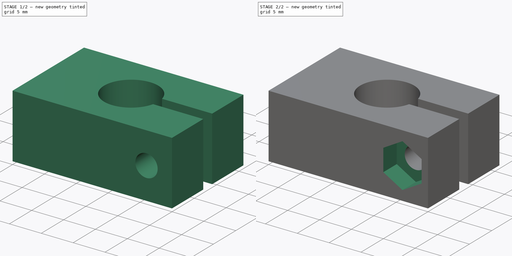
[diagram: build sequence overview — one tinted view per stage of 2, left to right]
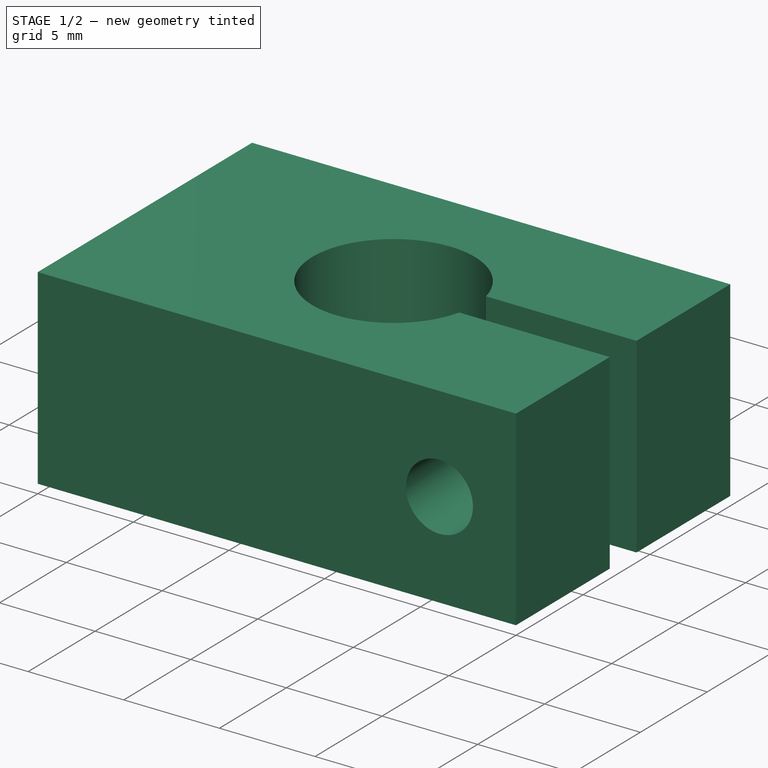
[diagram: stage 1 of 2 — iso view after this stage's code; geometry added in this stage tinted green]
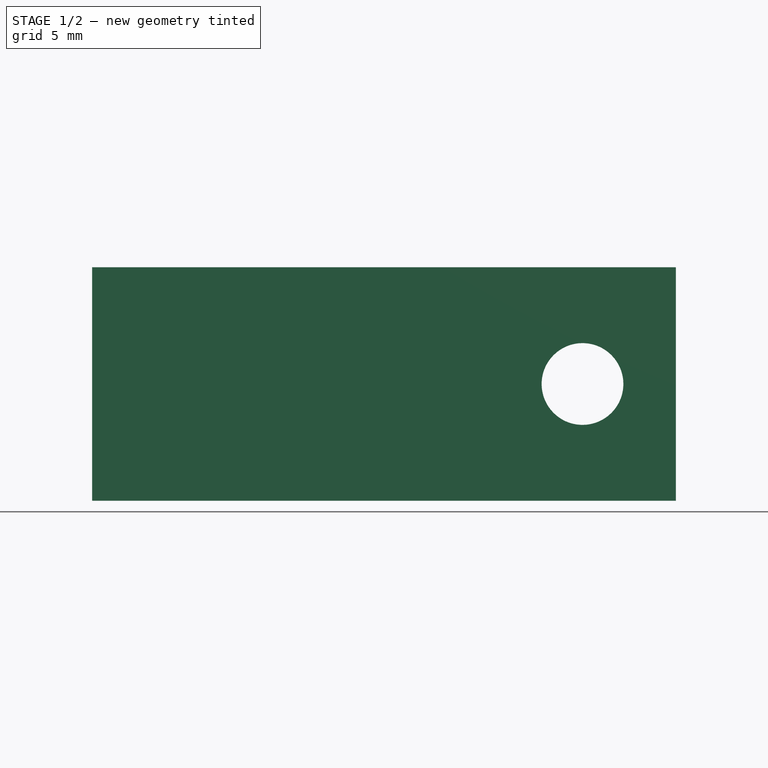
[diagram: stage 1 of 2 — front view after this stage's code; geometry added in this stage tinted green]
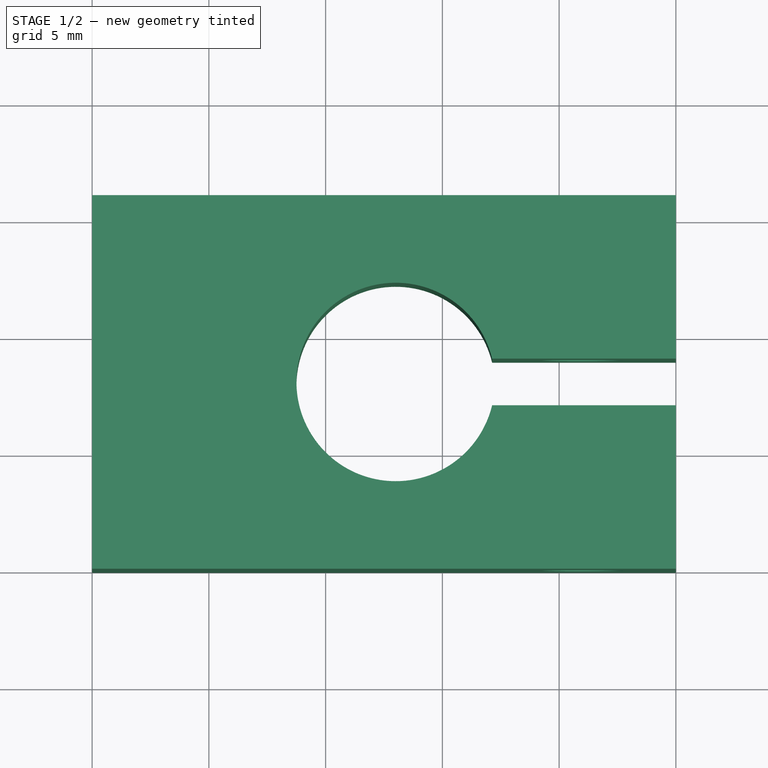
[diagram: stage 1 of 2 — top view after this stage's code; geometry added in this stage tinted green]
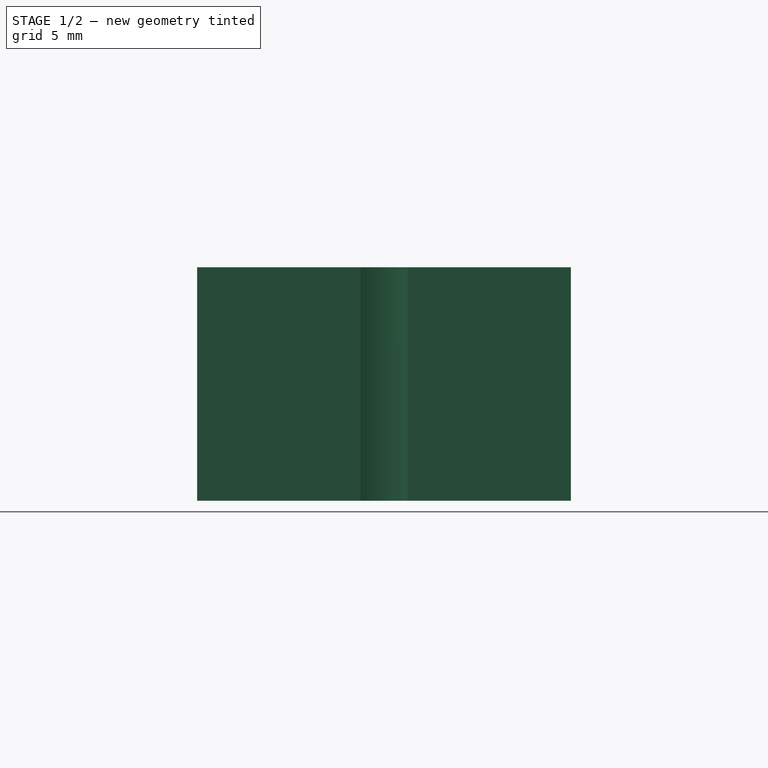
[diagram: stage 1 of 2 — right view after this stage's code; geometry added in this stage tinted green]
FCSTD DOCUMENT
Label: 8mmClampLong
objects: Sketcher::SketchObject×4, PartDesign::Pocket×3, PartDesign::Pad×1
note: 9 computed .brp shape members not serialized (recipe doc carries the construction recipe); baked Part::Feature solids carry a one-line shape summary decoded from their .brp

FEATURE [Sketcher::SketchObject] Sketch
  sketch-geometry (8):
    g0: LineSegment StartX=0 StartY=0 StartZ=0 EndX=0 EndY=16 EndZ=0
    g1: LineSegment StartX=0 StartY=16 StartZ=0 EndX=25 EndY=16 EndZ=0
    g2: LineSegment StartX=25 StartY=16 StartZ=0 EndX=25 EndY=9 EndZ=0
    g3: LineSegment StartX=25 StartY=9 StartZ=0 EndX=17.1307 EndY=9 EndZ=0
    g4: LineSegment StartX=17.1307 StartY=7 StartZ=0 EndX=25 EndY=7 EndZ=0
    g5: LineSegment StartX=25 StartY=7 StartZ=0 EndX=25 EndY=0 EndZ=0
    g6: LineSegment StartX=25 StartY=0 StartZ=0 EndX=0 EndY=0 EndZ=0
    g7: ArcOfCircle CenterX=13 CenterY=8 CenterZ=0 NormalX=0 NormalY=0 NormalZ=1 Radius=4.25 StartAngle=0.237521 EndAngle=6.04566
  constraints (25):
    c: Vertical(g0)
    c: Coincident(g0,g1)
    c: Horizontal(g1)
    c: Coincident(g1,g2)
    c: Coincident(g2,g3)
    c: Coincident(g4,g5)
    c: Vertical(g5)
    c: Coincident(g5,g6)
    c: Coincident(g6,g0)
    c: Horizontal(g6)
    c: Coincident(g7,g3)
    c: Coincident(g7,g4)
    c: Distance(g0) = 16
    c: Horizontal(g3)
    c: Horizontal(g4)
    c: Vertical(g2)
    c: Radius(g7) = 4.25
    c: Distance(g6) = 25
    c: Equal(g6,g1)
    c: DistanceX(g0) = 0
    c: DistanceY(g0) = 0
    c: Distance(g7,g0) = 13
    c: Distance(g7,g6) = 8
    c: Equal(g2,g5)
    c: Distance(g2,g4) = 2
FEATURE [PartDesign::Pad] Pad
  Length = 10
  MirroredExtent = false
  Sketch = -> Sketch
FEATURE [Sketcher::SketchObject] Sketch001
  Placement = pos=(0,16,0) rot=(0,0.707107,0.707107;3.14159rad)
  Support = -> Pad [Face2]
  sketch-geometry (1):
    g0: Circle CenterX=-21 CenterY=5 CenterZ=0 NormalX=0 NormalY=0 NormalZ=1 Radius=1.75
  constraints (3):
    c: DistanceX(g0) = -21
    c: DistanceY(g0) = 5
    c: Radius(g0) = 1.75
FEATURE [PartDesign::Pocket] Pocket  label="ScrewPocket"
  Length = 16
  Sketch = -> Sketch001
  Type = 0
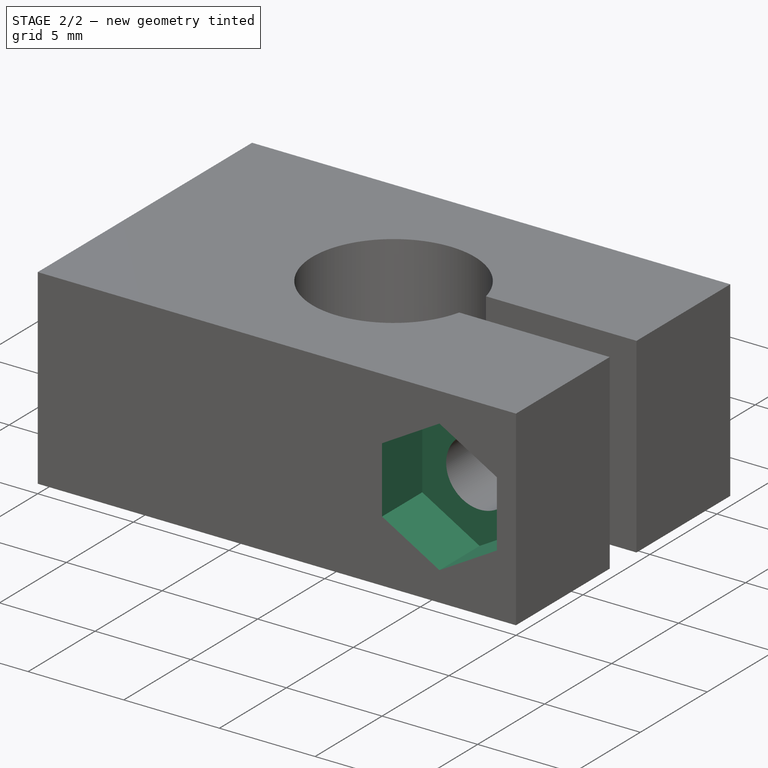
[diagram: stage 2 of 2 — iso view after this stage's code; geometry added in this stage tinted green]
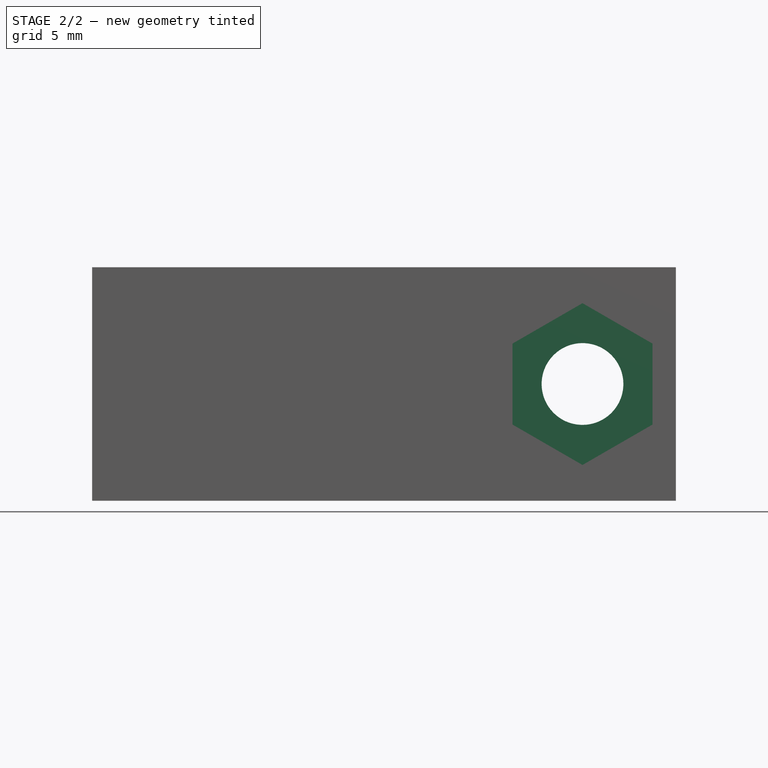
[diagram: stage 2 of 2 — front view after this stage's code; geometry added in this stage tinted green]
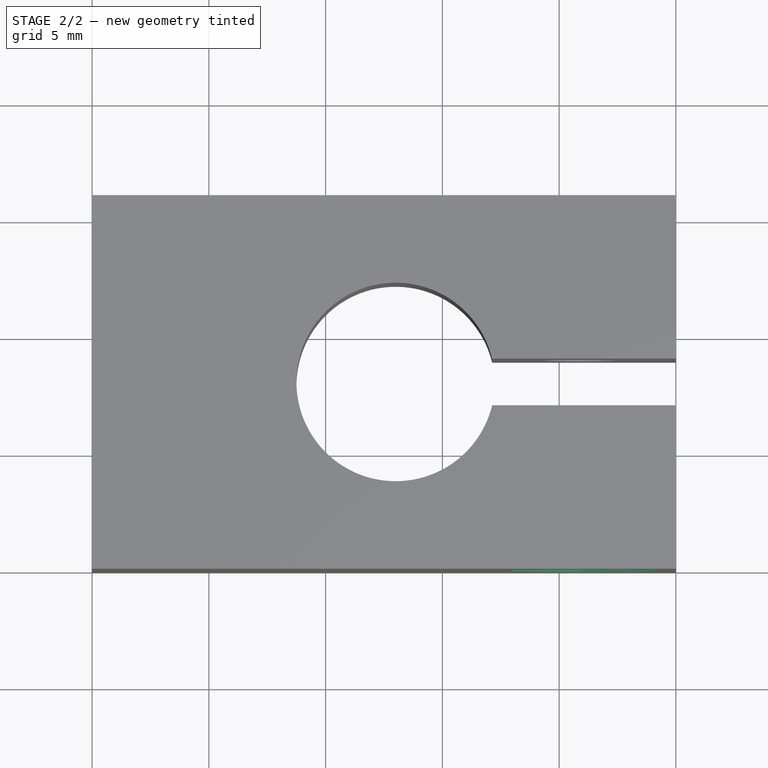
[diagram: stage 2 of 2 — top view after this stage's code; geometry added in this stage tinted green]
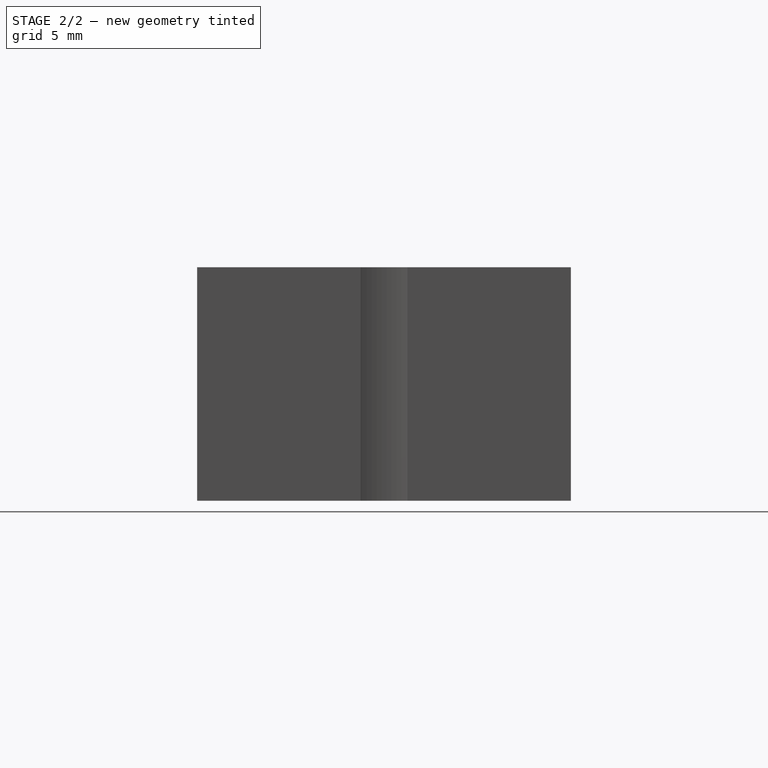
[diagram: stage 2 of 2 — right view after this stage's code; geometry added in this stage tinted green]
FEATURE [Sketcher::SketchObject] Sketch002
  Placement = pos=(0,16,0) rot=(0,0.707107,0.707107;3.14159rad)
  Support = -> Pocket [Face3]
  sketch-geometry (1):
    g0: Circle CenterX=-21 CenterY=5 CenterZ=0 NormalX=0 NormalY=0 NormalZ=1 Radius=3
  constraints (3):
    c: DistanceX(g0) = -21
    c: DistanceY(g0) = 5
    c: Radius(g0) = 3
FEATURE [PartDesign::Pocket] Pocket001  label="CapPocket"
  Length = 3.5
  Sketch = -> Sketch002
  Type = 0
FEATURE [Sketcher::SketchObject] Sketch003
  Placement = pos=(0,0,0) rot=(1,0,0;1.5708rad)
  Support = -> Pocket001 [Face2]
  sketch-geometry (10):
    g0: LineSegment StartX=21 StartY=8.46141 StartZ=0 EndX=18 EndY=6.72935 EndZ=0
    g1: LineSegment StartX=18 StartY=6.72935 StartZ=0 EndX=18 EndY=3.26525 EndZ=0
    g2: LineSegment StartX=18 StartY=3.26525 StartZ=0 EndX=21 EndY=1.5332 EndZ=0
    g3: LineSegment StartX=21 StartY=1.5332 StartZ=0 EndX=24 EndY=3.26525 EndZ=0
    g4: LineSegment StartX=24 StartY=3.26525 StartZ=0 EndX=24 EndY=6.72935 EndZ=0
    g5: LineSegment StartX=24 StartY=6.72935 StartZ=0 EndX=21 EndY=8.46141 EndZ=0
    g6: LineSegment [constr] StartX=24 StartY=6.72935 StartZ=0 EndX=21 EndY=4.9973 EndZ=0
    g7: LineSegment [constr] StartX=18 StartY=6.72935 StartZ=0 EndX=21 EndY=4.9973 EndZ=0
    g8: LineSegment [constr] StartX=24 StartY=3.26525 StartZ=0 EndX=21 EndY=4.9973 EndZ=0
    g9: LineSegment [constr] StartX=21 StartY=4.9973 StartZ=0 EndX=18 EndY=3.26525 EndZ=0
  constraints (27):
    c: Coincident(g0,g1)
    c: Coincident(g1,g2)
    c: Coincident(g2,g3)
    c: Coincident(g3,g4)
    c: Vertical(g4)
    c: Coincident(g4,g5)
    c: Coincident(g0,g5)
    c: Vertical(g1)
    c: Equal(g1,g0)
    c: Equal(g0,g5)
    c: Equal(g5,g4)
    c: Equal(g4,g3)
    c: Equal(g3,g2)
    c: DistanceX(g1,g3) = 6
    c: Angle(g2,g1) = 2.0944
    c: Angle(g0,g5) = 2.0944
    c: Coincident(g1,g9)
    c: Coincident(g7,g0)
    c: Coincident(g6,g4)
    c: Coincident(g8,g3)
    c: Coincident(g8,g6)
    c: Coincident(g9,g7)
    c: Coincident(g7,g6)
    c: Equal(g8,g6)
    c: Equal(g7,g6)
    c: DistanceX(g6) = 21
    c: DistanceY(g6) = 4.9973
FEATURE [PartDesign::Pocket] Pocket002
  Length = 3
  Sketch = -> Sketch003
  Type = 0
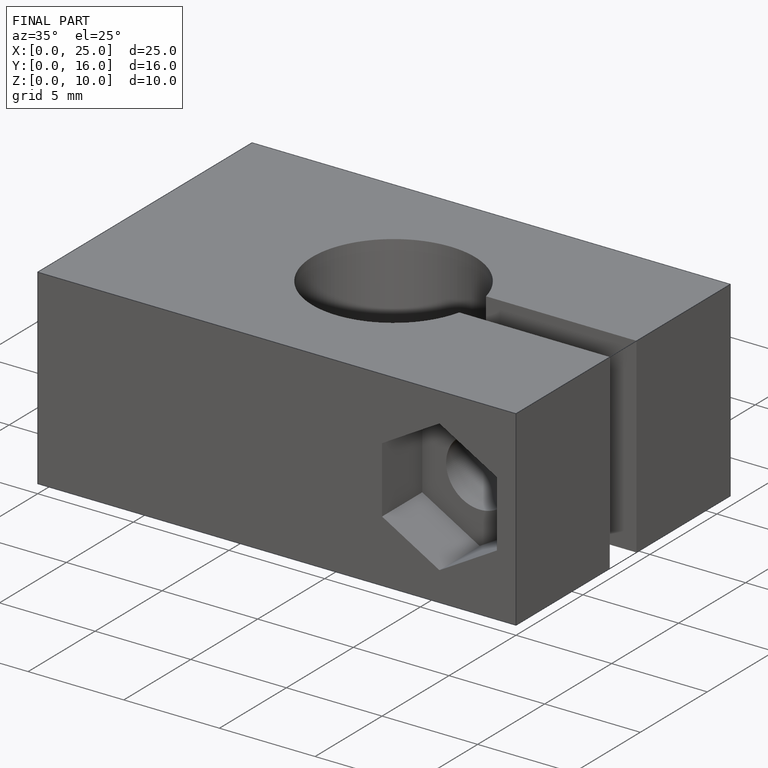
[diagram: finished part — iso view with bounding-box wireframe]
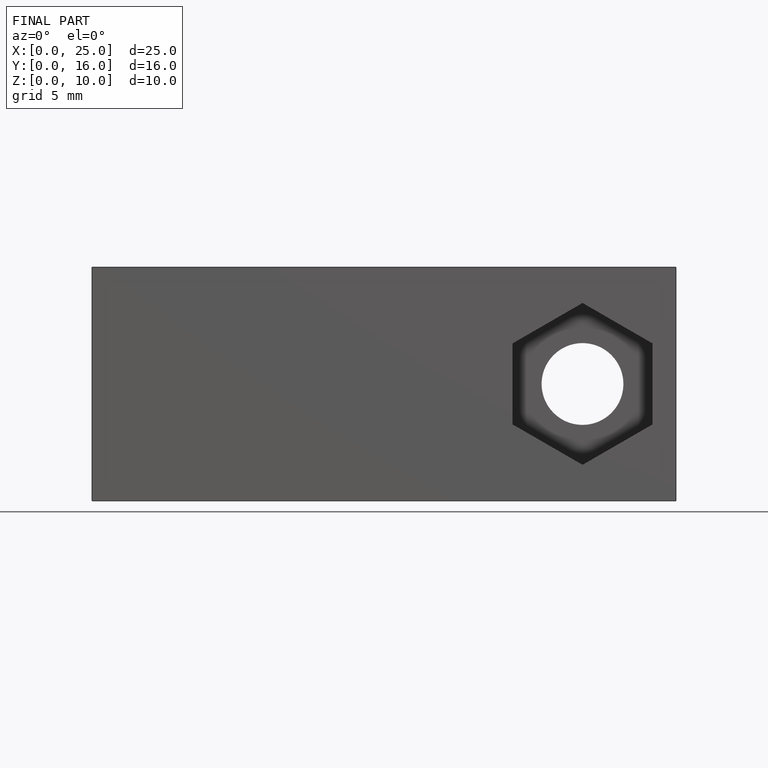
[diagram: finished part — front view with bounding-box wireframe]
